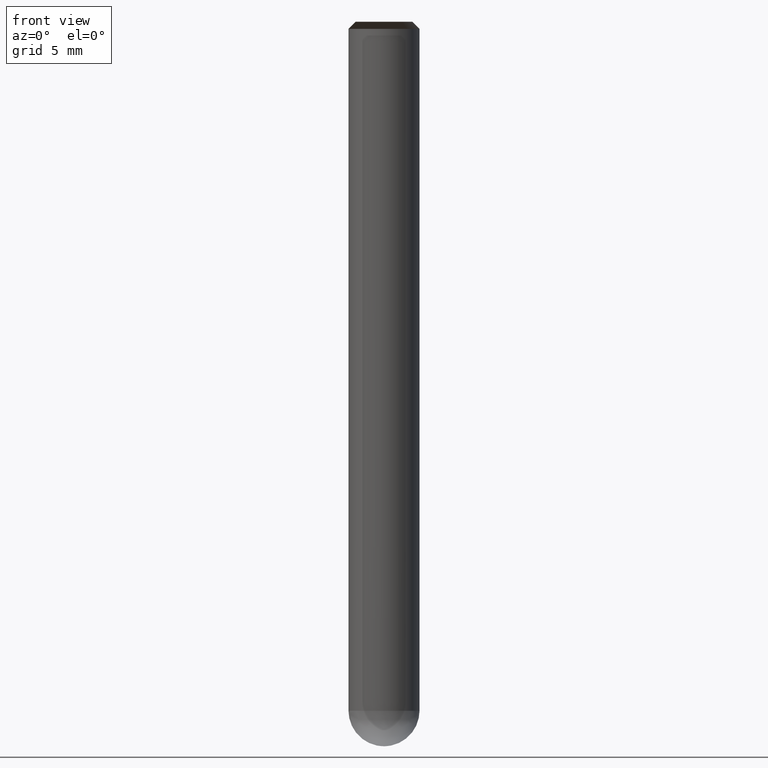
[diagram: clean part render]
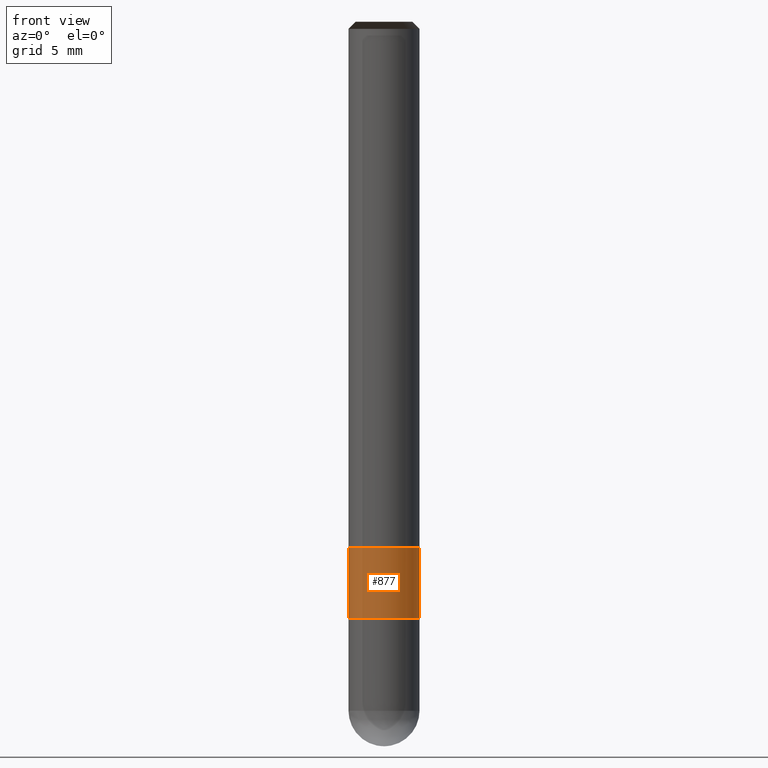
[diagram: same view with one face highlighted and labeled with its STEP entity id]
A machine part, front view. The second image highlights one B-rep face of the part: STEP entity #877.
In plain terms, the highlighted face is a freeform B-spline surface patch.
Its self-contained STEP definition (entity closure, byte-faithful):
#595=CARTESIAN_POINT('',(2.5,0.0,-5.0));
#599=CARTESIAN_POINT('',(-2.5,0.0,-5.0));
#607=CARTESIAN_POINT('',(-2.5,-2.5,-5.0));
#608=CARTESIAN_POINT('',(0.0,-2.5,-5.0));
#609=CARTESIAN_POINT('',(2.5,-2.5,-5.0));
#610=CARTESIAN_POINT('',(2.5,0.0,0.0));
#614=CARTESIAN_POINT('',(-2.5,0.0,0.0));
#626=CARTESIAN_POINT('',(-2.5,-2.5,0.0));
#627=CARTESIAN_POINT('',(0.0,-2.5,0.0));
#628=CARTESIAN_POINT('',(2.5,-2.5,0.0));
#858=(
BOUNDED_SURFACE()
B_SPLINE_SURFACE(1,2,(
(#599,#607,#608,#609,#595),
(#614,#626,#627,#628,#610)
), .UNSPECIFIED.,.F.,.F.,.F.)
B_SPLINE_SURFACE_WITH_KNOTS((2,2),(3,2,3),(
0.0,1.0),(
0.0,0.5,1.0), .UNSPECIFIED.)
GEOMETRIC_REPRESENTATION_ITEM()
RATIONAL_B_SPLINE_SURFACE(((1.0,0.707106781187,1.0,0.707106781187,1.0),
(1.0,0.707106781187,1.0,0.707106781187,1.0)
))
REPRESENTATION_ITEM('')
SURFACE()
);
#859=(
BOUNDED_CURVE()
B_SPLINE_CURVE(2,(#595,#609,#608,#607,#599),.UNSPECIFIED.,.F.,.F.)
B_SPLINE_CURVE_WITH_KNOTS((3,2,3),
(0.0,0.5,1.0),.UNSPECIFIED.)
CURVE()
GEOMETRIC_REPRESENTATION_ITEM()
RATIONAL_B_SPLINE_CURVE((1.0,0.707106781187,1.0,0.707106781187,1.0))
REPRESENTATION_ITEM('')
);
#860=(
BOUNDED_CURVE()
B_SPLINE_CURVE(1,(#599,#614),.UNSPECIFIED.,.F.,.F.)
B_SPLINE_CURVE_WITH_KNOTS((2,2),
(0.0,1.0),.UNSPECIFIED.)
CURVE()
GEOMETRIC_REPRESENTATION_ITEM()
RATIONAL_B_SPLINE_CURVE((1.0,1.0))
REPRESENTATION_ITEM('')
);
#861=(
BOUNDED_CURVE()
B_SPLINE_CURVE(2,(#614,#626,#627,#628,#610),.UNSPECIFIED.,.F.,.F.)
B_SPLINE_CURVE_WITH_KNOTS((3,2,3),
(0.0,0.5,1.0),.UNSPECIFIED.)
CURVE()
GEOMETRIC_REPRESENTATION_ITEM()
RATIONAL_B_SPLINE_CURVE((1.0,0.707106781187,1.0,0.707106781187,1.0))
REPRESENTATION_ITEM('')
);
#862=(
BOUNDED_CURVE()
B_SPLINE_CURVE(1,(#610,#595),.UNSPECIFIED.,.F.,.F.)
B_SPLINE_CURVE_WITH_KNOTS((2,2),
(0.0,1.0),.UNSPECIFIED.)
CURVE()
GEOMETRIC_REPRESENTATION_ITEM()
RATIONAL_B_SPLINE_CURVE((1.0,1.0))
REPRESENTATION_ITEM('')
);
#863=VERTEX_POINT('',#595);
#864=VERTEX_POINT('',#599);
#865=VERTEX_POINT('',#610);
#866=VERTEX_POINT('',#614);
#867=EDGE_CURVE('',#863,#864,#859,.T.);
#868=EDGE_CURVE('',#864,#866,#860,.T.);
#869=EDGE_CURVE('',#866,#865,#861,.T.);
#870=EDGE_CURVE('',#865,#863,#862,.T.);
#871=ORIENTED_EDGE('',*,*,#867,.T.);
#872=ORIENTED_EDGE('',*,*,#868,.T.);
#873=ORIENTED_EDGE('',*,*,#869,.T.);
#874=ORIENTED_EDGE('',*,*,#870,.T.);
#875=EDGE_LOOP('',(#871,#872,#873,#874));
#876=FACE_OUTER_BOUND('',#875,.T.);
#877=ADVANCED_FACE('',(#876),#858,.T.);